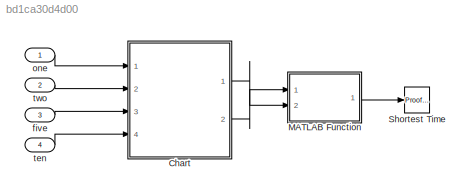
MODEL slx_bd1ca30d4d00
KIND model
CONFIG AbsTol = auto
CONFIG EnableMultiTasking = off
CONFIG FixedStep = 1
CONFIG MaxStep = auto
CONFIG MinStep = auto
CONFIG RelTol = 1e-3
CONFIG SampleTimeConstraint = Unconstrained
CONFIG Solver = FixedStepAuto
CONFIG SolverName = FixedStepAuto
CONFIG StartTime = 0.0
CONFIG StopTime = 10.0
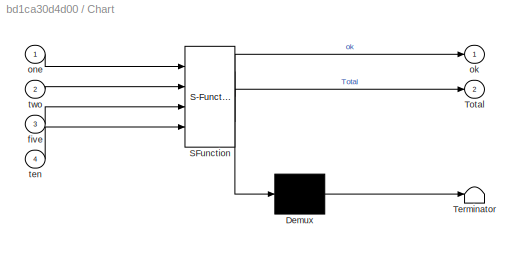
BLOCK [SubSystem] Chart
  ErrorFcn = Stateflow.Translate.translate
  PermitHierarchicalResolution = ExplicitOnly
  PortSchema = {"entries":[{"content":{"sides":[{"content":{"connectorIds":["In1","In2","In3","In4"]},"type":"ConnectorPlacement.EquallySpacedRectSide","uuid":"3d10509f-1c59-4787-b4fe-72fbca6353c5"},{"content":{"connectorIds":["Out2","Out1"],"side":"RIGHT"},"type":"ConnectorPlacement.EquallySpacedRectSide","uuid":"d538d11a-30ce-4dac-8c47-4de1dbc60811"},{"content":{"connectorIds":[],"side":"TOP"},"type":"Connecto...<+267ch>
  Ports = [4, 2]
  RequestExecContextInheritance = off
  SFBlockType = Chart
  TreatAsAtomicUnit = on
BLOCK [Demux] Chart/ Demux 
  Outputs = 1
  Ports = [1, 1]
BLOCK [S-Function] Chart/ SFunction 
  EnableBusSupport = on
  FunctionName = sf_sfun
  PortCounts = [4 3]
  Ports = [4, 3]
  SFcnIsStateOwnerBlock = off
  SFunctionDeploymentMode = off
  Tag = Stateflow S-Function 3
BLOCK [Terminator] Chart/ Terminator 
BLOCK [Outport] Chart/Total
  Port = 2
BLOCK [Inport] Chart/five
  Port = 3
BLOCK [Outport] Chart/ok
BLOCK [Inport] Chart/one
BLOCK [Inport] Chart/ten
  Port = 4
BLOCK [Inport] Chart/two
  Port = 2
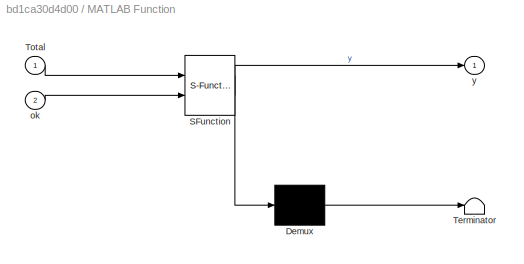
BLOCK [SubSystem] MATLAB Function
  ErrorFcn = Stateflow.Translate.translate
  PermitHierarchicalResolution = ExplicitOnly
  Ports = [2, 1]
  RequestExecContextInheritance = off
  SFBlockType = MATLAB Function
  TreatAsAtomicUnit = on
BLOCK [Demux] MATLAB Function/ Demux 
  Outputs = 1
  Ports = [1, 1]
BLOCK [S-Function] MATLAB Function/ SFunction 
  EnableBusSupport = on
  FunctionName = sf_sfun
  PortCounts = [2 2]
  Ports = [2, 2]
  SFcnIsStateOwnerBlock = off
  SFunctionDeploymentMode = off
  Tag = Stateflow S-Function 2
BLOCK [Terminator] MATLAB Function/ Terminator 
BLOCK [Inport] MATLAB Function/Total
BLOCK [Inport] MATLAB Function/ok
  Port = 2
BLOCK [Outport] MATLAB Function/y
BLOCK [Reference] Shortest Time  REF=sldvlib/Objectives and Constraints/Proof Objective
  AttributesFormatString = %<intervals>
  NameLocation = top
  Ports = [1]
  SourceBlock = sldvlib/Objectives and Constraints/Proof Objective
  SourceProductBaseCode = SL
  SourceType = Design Verifier Proof Objective
BLOCK [Inport] five
  Port = 3
BLOCK [Inport] one
BLOCK [Inport] ten
  Port = 4
BLOCK [Inport] two
  Port = 2
LINE Chart:1 -> MATLAB Function:2
LINE Chart:2 -> MATLAB Function:1
LINE MATLAB Function:1 -> Shortest Time:1
LINE five:1 -> Chart:3
LINE one:1 -> Chart:1
LINE ten:1 -> Chart:4
LINE two:1 -> Chart:2
CHART MATLAB Function states=1 transitions=1
  STATE_LABEL 'eML_blk_kernel()'
  STATE_LABEL 'SCRIPT:\nfunction y = fcn(Total,ok)\nif Total<18 && ok==0\n    y=0;\nelse\n    y=1;\nend'
CHART Chart states=3 transitions=12
  STATE_LABEL 'Init'
  STATE_LABEL 'runn'
  STATE_LABEL 'SCRIPT:\nfunction runn\n sldv.assume(one + two + five + ten <=2);\n sldv.assume(one + two + five + ten >0);\n sldv.assume((one && one_pos==torch) || (two && two_pos==torch) || (five && five_pos==torch) || (ten && ten_pos==torch));\nend\n'
  STATE_LABEL 'GOAL'
CHART  states=0 transitions=0
CHART  states=0 transitions=0
